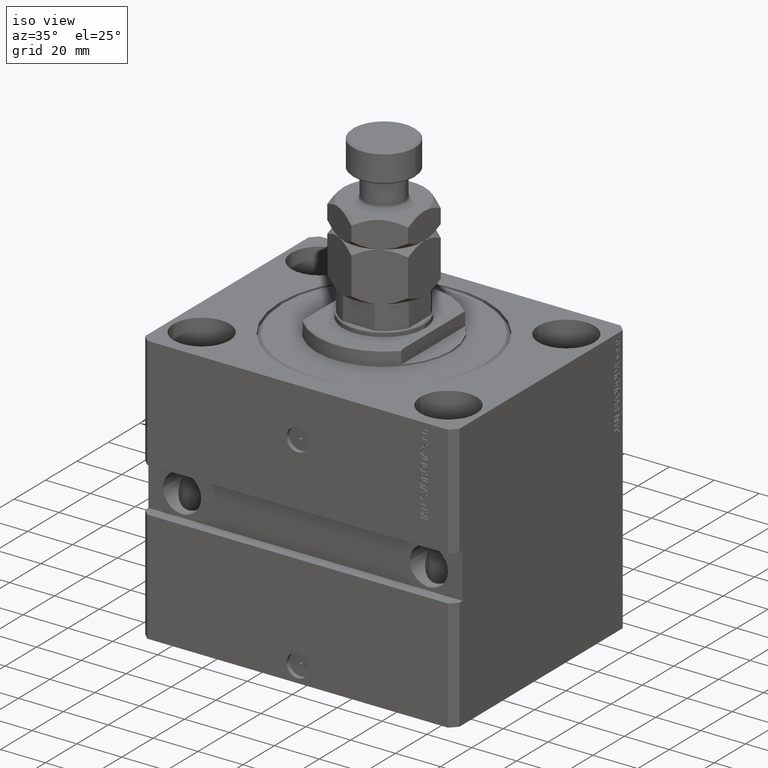
[diagram: clean part render]
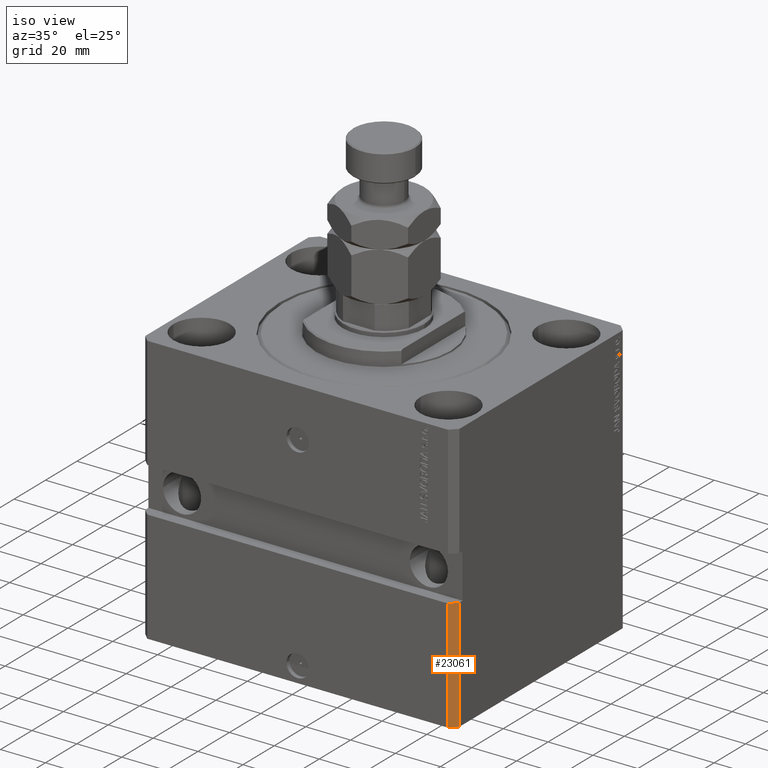
[diagram: same view with one face highlighted and labeled with its STEP entity id]
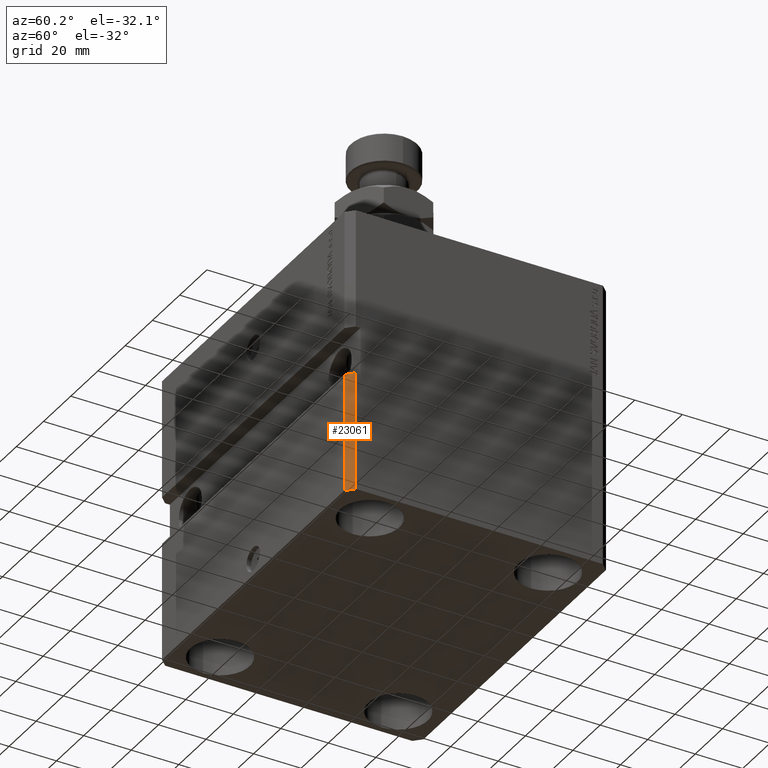
[diagram: same view with one face highlighted and labeled with its STEP entity id]
A machine part, iso view. The second image highlights one B-rep face of the part: STEP entity #23061.
A second angle (auxiliary view) of the same face is appended — the face is thin or edge-on in the first view.
In plain terms, the highlighted planar face has unit normal (0.7071, -0.7071, 0).
Its self-contained STEP definition (entity closure, byte-faithful):
#3402 = CARTESIAN_POINT ( 'NONE',  ( 67.00000000000001421, -54.99999999999997868, -120.0000000000000000 ) ) ;
#3824 = DIRECTION ( 'NONE',  ( 0.7071067811865474617, 0.7071067811865474617, 0.000000000000000000 ) ) ;
#4273 = ORIENTED_EDGE ( 'NONE', *, *, #8889, .T. ) ;
#7855 = EDGE_CURVE ( 'NONE', #36615, #16175, #22218, .T. ) ;
#8889 = EDGE_CURVE ( 'NONE', #36615, #14948, #36485, .T. ) ;
#9146 = AXIS2_PLACEMENT_3D ( 'NONE', #25784, #29872, #3824 ) ;
#10081 = LINE ( 'NONE', #39798, #39972 ) ;
#10379 = ORIENTED_EDGE ( 'NONE', *, *, #17057, .F. ) ;
#12958 = CARTESIAN_POINT ( 'NONE',  ( 67.00000000000001421, -54.99999999999997868, -70.00000000000000000 ) ) ;
#14948 = VERTEX_POINT ( 'NONE', #36097 ) ;
#16175 = VERTEX_POINT ( 'NONE', #12958 ) ;
#17057 = EDGE_CURVE ( 'NONE', #16175, #32306, #10081, .T. ) ;
#17217 = ORIENTED_EDGE ( 'NONE', *, *, #36873, .T. ) ;
#21813 = EDGE_LOOP ( 'NONE', ( #10379, #42048, #4273, #17217 ) ) ;
#21970 = VECTOR ( 'NONE', #28982, 1000.000000000000000 ) ;
#22218 = LINE ( 'NONE', #3402, #21970 ) ;
#22704 = DIRECTION ( 'NONE',  ( 0.7071067811865474617, 0.7071067811865474617, 0.000000000000000000 ) ) ;
#23061 = ADVANCED_FACE ( 'NONE', ( #25315 ), #36897, .T. ) ;
#25315 = FACE_OUTER_BOUND ( 'NONE', #21813, .T. ) ;
#25784 = CARTESIAN_POINT ( 'NONE',  ( 67.00000000000001421, -54.99999999999997868, -120.0000000000000000 ) ) ;
#27765 = DIRECTION ( 'NONE',  ( 0.000000000000000000, 0.000000000000000000, 1.000000000000000000 ) ) ;
#28982 = DIRECTION ( 'NONE',  ( 0.000000000000000000, 0.000000000000000000, 1.000000000000000000 ) ) ;
#29381 = DIRECTION ( 'NONE',  ( 0.7071067811865474617, 0.7071067811865474617, 0.000000000000000000 ) ) ;
#29872 = DIRECTION ( 'NONE',  ( 0.7071067811865475727, -0.7071067811865475727, 0.000000000000000000 ) ) ;
#32306 = VERTEX_POINT ( 'NONE', #46592 ) ;
#36097 = CARTESIAN_POINT ( 'NONE',  ( 70.00000000000000000, -51.99999999999999289, -120.0000000000000000 ) ) ;
#36485 = LINE ( 'NONE', #37196, #39736 ) ;
#36615 = VERTEX_POINT ( 'NONE', #39751 ) ;
#36873 = EDGE_CURVE ( 'NONE', #14948, #32306, #41408, .T. ) ;
#36897 = PLANE ( 'NONE',  #9146 ) ;
#37196 = CARTESIAN_POINT ( 'NONE',  ( 67.00000000000001421, -54.99999999999997868, -120.0000000000000000 ) ) ;
#39736 = VECTOR ( 'NONE', #22704, 1000.000000000000114 ) ;
#39751 = CARTESIAN_POINT ( 'NONE',  ( 67.00000000000001421, -54.99999999999997868, -120.0000000000000000 ) ) ;
#39798 = CARTESIAN_POINT ( 'NONE',  ( 67.00000000000001421, -54.99999999999997868, -70.00000000000000000 ) ) ;
#39972 = VECTOR ( 'NONE', #29381, 1000.000000000000114 ) ;
#40071 = VECTOR ( 'NONE', #27765, 1000.000000000000000 ) ;
#41408 = LINE ( 'NONE', #45032, #40071 ) ;
#42048 = ORIENTED_EDGE ( 'NONE', *, *, #7855, .F. ) ;
#45032 = CARTESIAN_POINT ( 'NONE',  ( 70.00000000000000000, -51.99999999999999289, -120.0000000000000000 ) ) ;
#46592 = CARTESIAN_POINT ( 'NONE',  ( 70.00000000000001421, -51.99999999999997868, -70.00000000000000000 ) ) ;